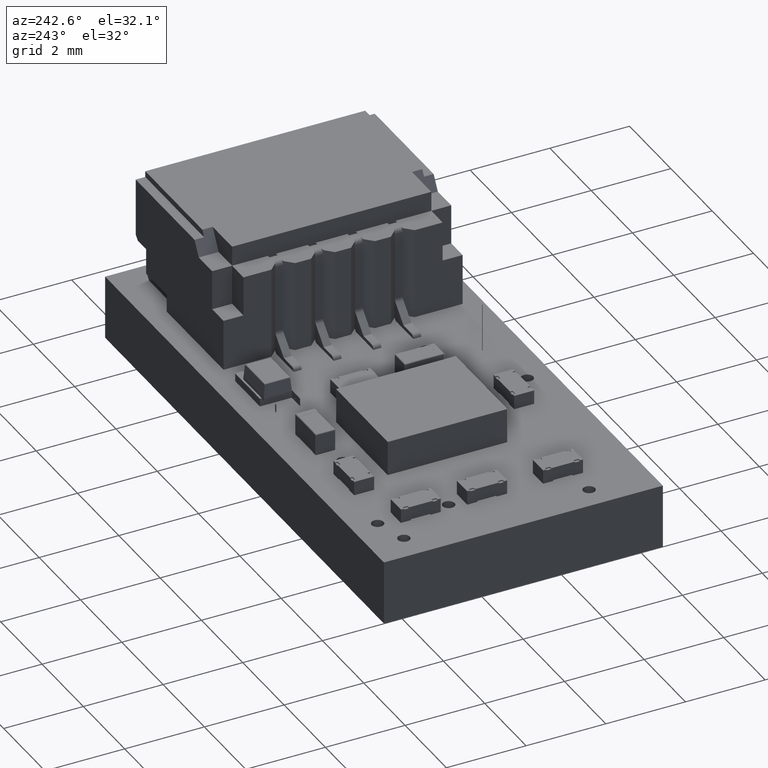
[diagram: clean part render]
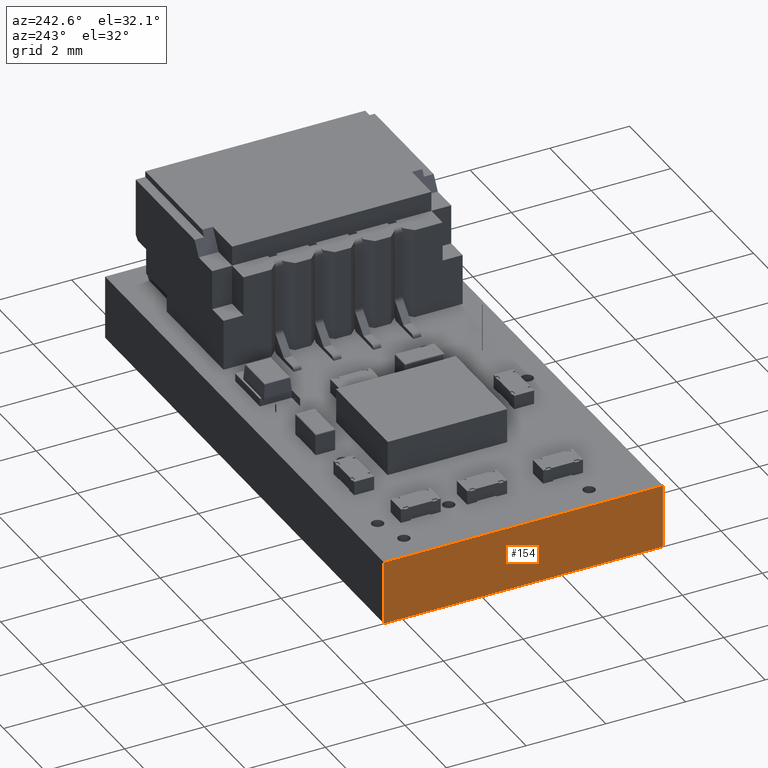
[diagram: same view with one face highlighted and labeled with its STEP entity id]
A machine part, auxiliary view. The second image highlights one B-rep face of the part: STEP entity #154.
In plain terms, the highlighted planar face has unit normal (1, 0, 0).
Its self-contained STEP definition (entity closure, byte-faithful):
#98 = VERTEX_POINT('',#99);
#99 = CARTESIAN_POINT('',(-0.32131,-0.33935,0.803));
#105 = EDGE_CURVE('',#106,#98,#108,.T.);
#106 = VERTEX_POINT('',#107);
#107 = CARTESIAN_POINT('',(-0.32131,-0.33935,-0.803));
#108 = LINE('',#109,#110);
#109 = CARTESIAN_POINT('',(-0.32131,-0.33935,-0.803));
#110 = VECTOR('',#111,1.);
#111 = DIRECTION('',(0.,0.,1.));
#154 = ADVANCED_FACE('',(#155),#180,.F.);
#155 = FACE_BOUND('',#156,.F.);
#156 = EDGE_LOOP('',(#157,#158,#166,#174));
#157 = ORIENTED_EDGE('',*,*,#105,.T.);
#158 = ORIENTED_EDGE('',*,*,#159,.T.);
#159 = EDGE_CURVE('',#98,#160,#162,.T.);
#160 = VERTEX_POINT('',#161);
#161 = CARTESIAN_POINT('',(-0.32131,-7.33935,0.803));
#162 = LINE('',#163,#164);
#163 = CARTESIAN_POINT('',(-0.32131,-0.33935,0.803));
#164 = VECTOR('',#165,1.);
#165 = DIRECTION('',(0.,-1.,0.));
#166 = ORIENTED_EDGE('',*,*,#167,.F.);
#167 = EDGE_CURVE('',#168,#160,#170,.T.);
#168 = VERTEX_POINT('',#169);
#169 = CARTESIAN_POINT('',(-0.32131,-7.33935,-0.803));
#170 = LINE('',#171,#172);
#171 = CARTESIAN_POINT('',(-0.32131,-7.33935,-0.803));
#172 = VECTOR('',#173,1.);
#173 = DIRECTION('',(0.,0.,1.));
#174 = ORIENTED_EDGE('',*,*,#175,.F.);
#175 = EDGE_CURVE('',#106,#168,#176,.T.);
#176 = LINE('',#177,#178);
#177 = CARTESIAN_POINT('',(-0.32131,-0.33935,-0.803));
#178 = VECTOR('',#179,1.);
#179 = DIRECTION('',(0.,-1.,0.));
#180 = PLANE('',#181);
#181 = AXIS2_PLACEMENT_3D('',#182,#183,#184);
#182 = CARTESIAN_POINT('',(-0.32131,-0.33935,-0.803));
#183 = DIRECTION('',(1.,0.,-0.));
#184 = DIRECTION('',(0.,-1.,0.));